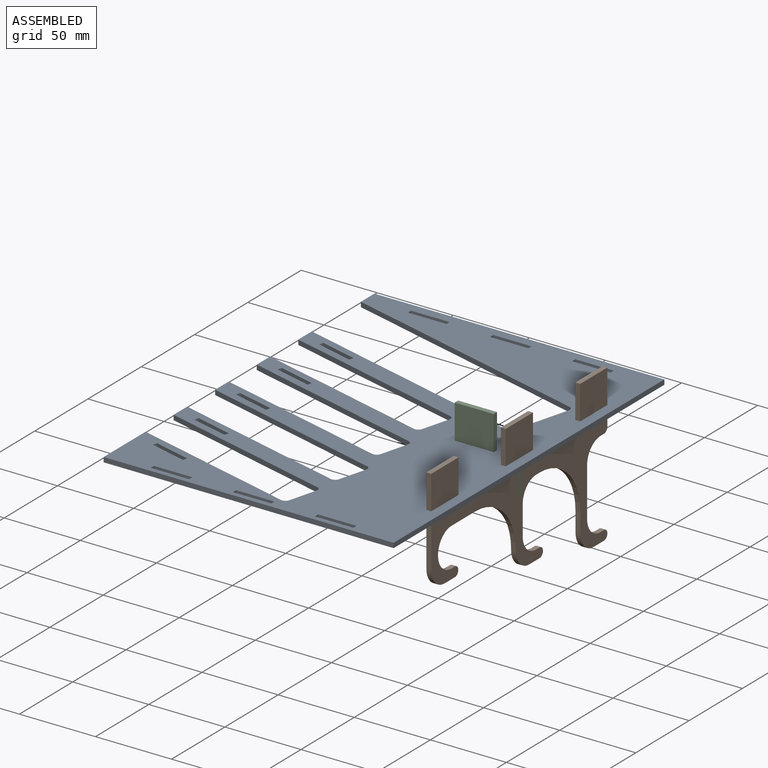
[diagram: assembled view]
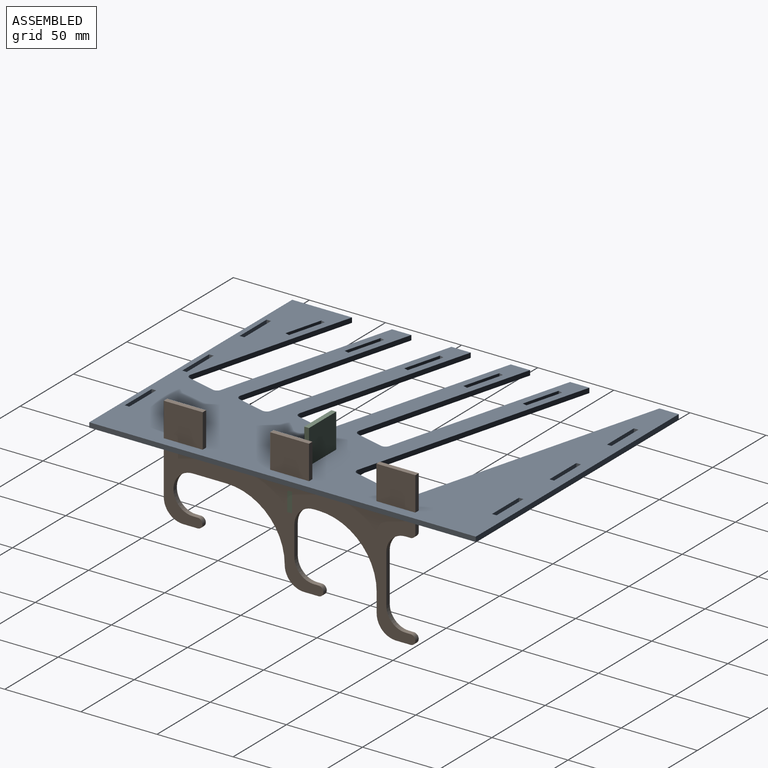
[diagram: assembled view, second angle]
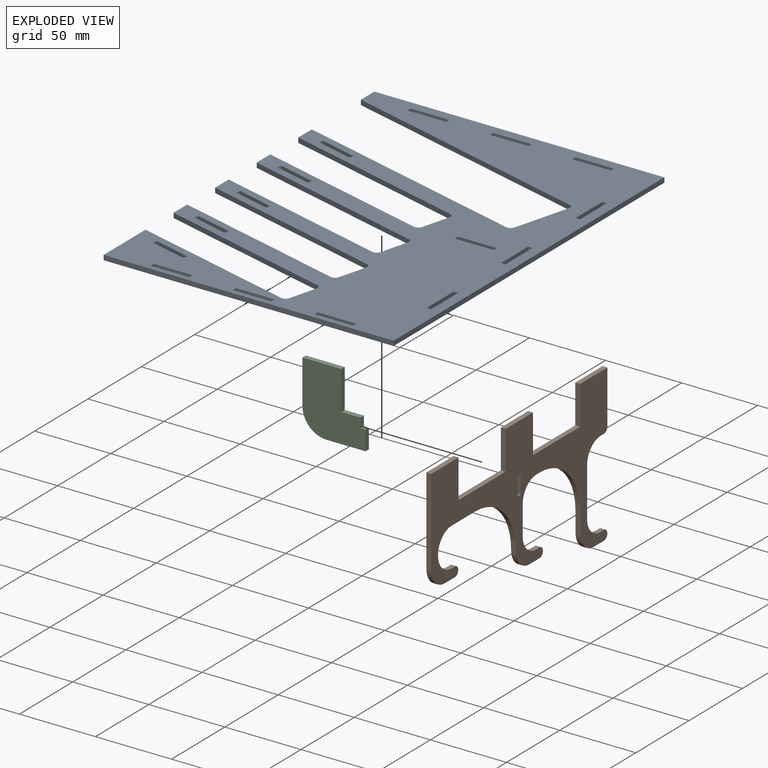
[diagram: exploded view]
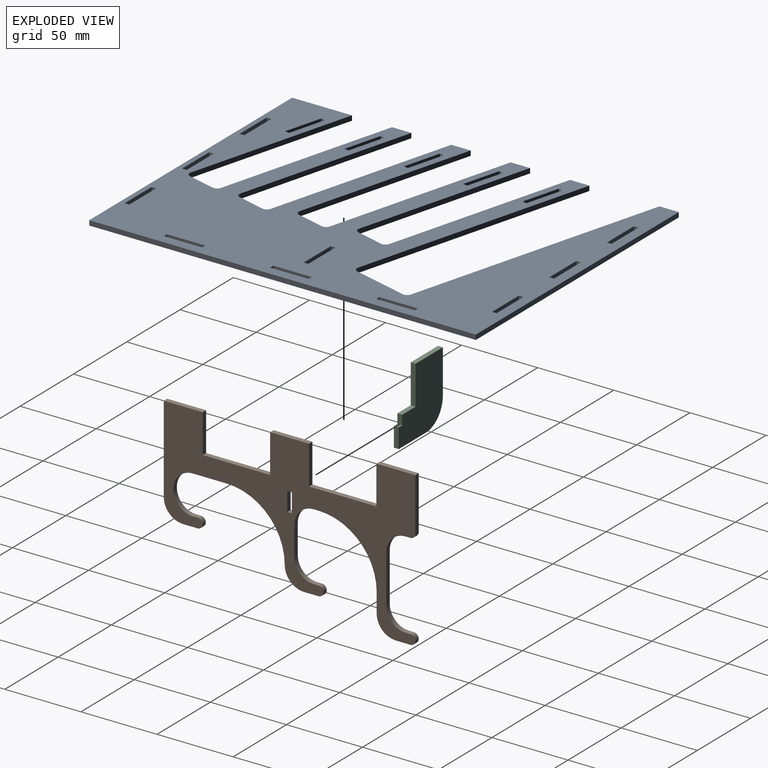
[diagram: exploded view, second angle]
ASSEMBLY  parts=3 mates=2
PART A: 96 faces, bbox 190.5x254x3.2 mm
  f0: plane 254x190.5mm, normal (0,0,1), area 26928.5mm2, adj f2,f3,f4,f5,f6,f7,f8,f9
  f1: plane 254x190.5mm, normal (0,0,-1), area 26928.5mm2, adj f2,f3,f4,f5,f6,f7,f8,f9
  f2: plane 12.7x3.18mm, normal (-1,0,0), area 40.3mm2, adj f0,f1,f3,f35
  f3: plane 116.1x31.11mm, normal (-0.26,-0.97,0), area 381.6mm2, adj f0,f1,f2,f4
  f4: cylinder r=3.17mm len=3.89mm, axis (0,0,-1), area 15.8mm2, adj f0,f1,f3,f5
  f5: plane 18.4x4.93mm, normal (-0.97,0.26,0), area 60.5mm2, adj f0,f1,f4,f6
  f6: cylinder r=3.17mm len=3.89mm, axis (0,0,-1), area 15.8mm2, adj f0,f1,f5,f7
  f7: plane 109.52x29.35mm, normal (0.26,0.97,0), area 360mm2, adj f0,f1,f6,f8
  f8: plane 39.3x3.18mm, normal (-1,0,0), area 124.8mm2, adj f0,f1,f7,f9
  f9: plane 190.5x3.18mm, normal (0,-1,0), area 604.8mm2, adj f0,f1,f8,f10
  f10: plane 254x3.18mm, normal (1,0,0), area 806.5mm2, adj f0,f1,f9,f11
  f11: plane 190.5x3.18mm, normal (0,1,0), area 604.8mm2, adj f0,f1,f10,f12
  f12: plane 12.7x3.18mm, normal (-1,0,0), area 40.3mm2, adj f0,f1,f11,f13
  f13: plane 168.67x45.2mm, normal (-0.26,-0.97,0), area 554.4mm2, adj f0,f1,f12,f14
  f14: cylinder r=3.17mm len=3.89mm, axis (0,0,-1), area 15.8mm2, adj f0,f1,f13,f15
  f15: plane 36.8x9.86mm, normal (-0.97,0.26,0), area 121mm2, adj f0,f1,f14,f16
  f16: cylinder r=3.17mm len=3.89mm, axis (0,0,-1), area 15.8mm2, adj f0,f1,f15,f17
  f17: plane 157.17x42.11mm, normal (0.26,0.97,0), area 516.6mm2, adj f0,f1,f16,f18
  f18: plane 12.7x3.18mm, normal (-1,0,0), area 40.3mm2, adj f0,f1,f17,f19
  f19: plane 122.67x32.87mm, normal (-0.26,-0.97,0), area 403.2mm2, adj f0,f1,f18,f20
  f20: cylinder r=3.17mm len=3.89mm, axis (0,0,-1), area 15.8mm2, adj f0,f1,f19,f21
  f21: plane 18.4x4.93mm, normal (-0.97,0.26,0), area 60.5mm2, adj f0,f1,f20,f22
  f22: cylinder r=3.17mm len=3.89mm, axis (0,0,-1), area 15.8mm2, adj f0,f1,f21,f23
  f23: plane 116.1x31.11mm, normal (0.26,0.97,0), area 381.6mm2, adj f0,f1,f22,f24
  f24: plane 12.7x3.18mm, normal (-1,0,0), area 40.3mm2, adj f0,f1,f23,f25
  f25: plane 122.67x32.87mm, normal (-0.26,-0.97,0), area 403.2mm2, adj f0,f1,f24,f26
  f26: cylinder r=3.17mm len=3.89mm, axis (0,0,-1), area 15.8mm2, adj f0,f1,f25,f27
  f27: plane 18.4x4.93mm, normal (-0.97,0.26,0), area 60.5mm2, adj f0,f1,f26,f28
  f28: cylinder r=3.17mm len=3.89mm, axis (0,0,-1), area 15.8mm2, adj f0,f1,f27,f29
  f29: plane 116.1x31.11mm, normal (0.26,0.97,0), area 381.6mm2, adj f0,f1,f28,f30
  f30: plane 12.7x3.18mm, normal (-1,0,0), area 40.3mm2, adj f0,f1,f29,f31
  f31: plane 122.67x32.87mm, normal (-0.26,-0.97,0), area 403.2mm2, adj f0,f1,f30,f32
  f32: cylinder r=3.17mm len=3.89mm, axis (0,0,-1), area 15.8mm2, adj f0,f1,f31,f33
  f33: plane 18.4x4.93mm, normal (-0.97,0.26,0), area 60.5mm2, adj f0,f1,f32,f34
  f34: cylinder r=3.17mm len=3.89mm, axis (0,0,-1), area 15.8mm2, adj f0,f1,f33,f35
  f35: plane 116.1x31.11mm, normal (0.26,0.97,0), area 381.6mm2, adj f0,f1,f2,f34
  f36: plane 3.18x3mm, normal (-1,0,0), area 9.5mm2, adj f0,f1,f37,f39
  f37: plane 25.22x3.18mm, normal (0,-1,0), area 80.1mm2, adj f0,f1,f36,f38
  f38: plane 3.18x3mm, normal (1,0,0), area 9.5mm2, adj f0,f1,f37,f39
  f39: plane 25.22x3.18mm, normal (0,1,0), area 80.1mm2, adj f0,f1,f36,f38
  f40: plane 3.18x2.9mm, normal (-0.97,0.26,0), area 9.5mm2, adj f0,f1,f41,f43
  f41: plane 24.36x6.53mm, normal (-0.26,-0.97,0), area 80.1mm2, adj f0,f1,f40,f42
  f42: plane 3.18x2.9mm, normal (0.97,-0.26,0), area 9.5mm2, adj f0,f1,f41,f43
  f43: plane 24.36x6.53mm, normal (0.26,0.97,0), area 80.1mm2, adj f0,f1,f40,f42
  f44: plane 3.18x3mm, normal (0,-1,0), area 9.5mm2, adj f0,f1,f45,f47
  f45: plane 25.22x3.18mm, normal (1,0,0), area 80.1mm2, adj f0,f1,f44,f46
  f46: plane 3.18x3mm, normal (0,1,0), area 9.5mm2, adj f0,f1,f45,f47
  f47: plane 25.22x3.18mm, normal (-1,0,0), area 80.1mm2, adj f0,f1,f44,f46
  f48: plane 24.36x6.53mm, normal (-0.26,-0.97,0), area 80.1mm2, adj f0,f1,f49,f51
  f49: plane 3.18x2.9mm, normal (0.97,-0.26,0), area 9.5mm2, adj f0,f1,f48,f50
  f50: plane 24.36x6.53mm, normal (0.26,0.97,0), area 80.1mm2, adj f0,f1,f49,f51
  f51: plane 3.18x2.9mm, normal (-0.97,0.26,0), area 9.5mm2, adj f0,f1,f48,f50
  f52: plane 3.18x2.9mm, normal (-0.97,0.26,0), area 9.5mm2, adj f0,f1,f53,f55
  f53: plane 24.36x6.53mm, normal (-0.26,-0.97,0), area 80.1mm2, adj f0,f1,f52,f54
  f54: plane 3.18x2.9mm, normal (0.97,-0.26,0), area 9.5mm2, adj f0,f1,f53,f55
  f55: plane 24.36x6.53mm, normal (0.26,0.97,0), area 80.1mm2, adj f0,f1,f52,f54
  f56: plane 3.18x2.9mm, normal (-0.97,0.26,0), area 9.5mm2, adj f0,f1,f57,f59
  f57: plane 24.36x6.53mm, normal (-0.26,-0.97,0), area 80.1mm2, adj f0,f1,f56,f58
  f58: plane 3.18x2.9mm, normal (0.97,-0.26,0), area 9.5mm2, adj f0,f1,f57,f59
  f59: plane 24.36x6.53mm, normal (0.26,0.97,0), area 80.1mm2, adj f0,f1,f56,f58
  f60: plane 3.18x3mm, normal (-1,0,0), area 9.5mm2, adj f0,f1,f61,f63
  f61: plane 25.22x3.18mm, normal (0,-1,0), area 80.1mm2, adj f0,f1,f60,f62
  f62: plane 3.18x3mm, normal (1,0,0), area 9.5mm2, adj f0,f1,f61,f63
  f63: plane 25.22x3.18mm, normal (0,1,0), area 80.1mm2, adj f0,f1,f60,f62
  f64: plane 3.18x3mm, normal (-1,0,0), area 9.5mm2, adj f0,f1,f65,f67
  f65: plane 25.22x3.18mm, normal (0,-1,0), area 80.1mm2, adj f0,f1,f64,f66
  f66: plane 3.18x3mm, normal (1,0,0), area 9.5mm2, adj f0,f1,f65,f67
  f67: plane 25.22x3.18mm, normal (0,1,0), area 80.1mm2, adj f0,f1,f64,f66
  f68: plane 24.36x6.53mm, normal (-0.26,-0.97,0), area 80.1mm2, adj f0,f1,f69,f71
  f69: plane 3.18x2.9mm, normal (0.97,-0.26,0), area 9.5mm2, adj f0,f1,f68,f70
  f70: plane 24.36x6.53mm, normal (0.26,0.97,0), area 80.1mm2, adj f0,f1,f69,f71
  f71: plane 3.18x2.9mm, normal (-0.97,0.26,0), area 9.5mm2, adj f0,f1,f68,f70
  f72: plane 25.22x3.18mm, normal (0,1,0), area 80.1mm2, adj f0,f1,f73,f75
  f73: plane 3.18x3mm, normal (-1,0,0), area 9.5mm2, adj f0,f1,f72,f74
  f74: plane 25.22x3.18mm, normal (0,-1,0), area 80.1mm2, adj f0,f1,f73,f75
  f75: plane 3.18x3mm, normal (1,0,0), area 9.5mm2, adj f0,f1,f72,f74
  f76: plane 25.22x3.18mm, normal (0,1,0), area 80.1mm2, adj f0,f1,f77,f79
  f77: plane 3.18x3mm, normal (-1,0,0), area 9.5mm2, adj f0,f1,f76,f78
  f78: plane 25.22x3.18mm, normal (0,-1,0), area 80.1mm2, adj f0,f1,f77,f79
  f79: plane 3.18x3mm, normal (1,0,0), area 9.5mm2, adj f0,f1,f76,f78
  f80: plane 3.18x3mm, normal (-1,0,0), area 9.5mm2, adj f0,f1,f81,f83
  f81: plane 25.22x3.18mm, normal (0,-1,0), area 80.1mm2, adj f0,f1,f80,f82
  f82: plane 3.18x3mm, normal (1,0,0), area 9.5mm2, adj f0,f1,f81,f83
  f83: plane 25.22x3.18mm, normal (0,1,0), area 80.1mm2, adj f0,f1,f80,f82
  f84: plane 25.22x3.18mm, normal (-1,0,0), area 80.1mm2, adj f0,f1,f85,f87
  f85: plane 3.18x3mm, normal (0,-1,0), area 9.5mm2, adj f0,f1,f84,f86
  f86: plane 25.22x3.18mm, normal (1,0,0), area 80.1mm2, adj f0,f1,f85,f87
  f87: plane 3.18x3mm, normal (0,1,0), area 9.5mm2, adj f0,f1,f84,f86
  f88: plane 3.18x3mm, normal (0,1,0), area 9.5mm2, adj f0,f1,f89,f91
  f89: plane 25.22x3.18mm, normal (-1,0,0), area 80.1mm2, adj f0,f1,f88,f90
  f90: plane 3.18x3mm, normal (0,-1,0), area 9.5mm2, adj f0,f1,f89,f91
  f91: plane 25.22x3.18mm, normal (1,0,0), area 80.1mm2, adj f0,f1,f88,f90
  f92: plane 3.18x3mm, normal (1,0,0), area 9.5mm2, adj f0,f1,f93,f94
  f93: plane 25.4x3.18mm, normal (0,-1,0), area 80.6mm2, adj f0,f1,f92,f95
  f94: plane 25.4x3.18mm, normal (0,1,0), area 80.6mm2, adj f0,f1,f92,f95
  f95: plane 3.18x3mm, normal (-1,0,0), area 9.5mm2, adj f0,f1,f93,f94
PART B: 43 faces, bbox 101.6x165.3x3.2 mm
  f0: plane 165.28x101.6mm, normal (0,0,1), area 6012.6mm2, adj f2,f3,f4,f5,f6,f7,f8,f9
  f1: plane 165.28x101.6mm, normal (0,0,-1), area 6012.6mm2, adj f2,f3,f4,f5,f6,f7,f8,f9
  f2: plane 25.4x3.18mm, normal (0,-1,0), area 80.6mm2, adj f0,f1,f3,f34
  f3: plane 44.27x3.18mm, normal (-1,0,0), area 140.6mm2, adj f0,f1,f2,f4
  f4: plane 25.4x3.18mm, normal (0,1,0), area 80.6mm2, adj f0,f1,f3,f5
  f5: plane 25.58x3.18mm, normal (-1,0,0), area 81.2mm2, adj f0,f1,f4,f6
  f6: plane 25.4x3.18mm, normal (0,-1,0), area 80.6mm2, adj f0,f1,f5,f7
  f7: plane 44.27x3.18mm, normal (-1,0,0), area 140.6mm2, adj f0,f1,f6,f8
  f8: plane 25.4x3.18mm, normal (0,1,0), area 80.6mm2, adj f0,f1,f7,f9
  f9: plane 25.58x3.18mm, normal (-1,0,0), area 81.2mm2, adj f0,f1,f8,f10
  f10: plane 57.15x3.18mm, normal (0,-1,0), area 181.5mm2, adj f0,f1,f9,f11
  f11: cylinder r=12.7mm len=12.7mm, axis (0,0,-1), area 63.3mm2, adj f0,f1,f10,f12
  f12: plane 9.53x3.18mm, normal (1,0,0), area 30.2mm2, adj f0,f1,f11,f42
  f13: plane 3.18x3.18mm, normal (-1,0,0), area 10.1mm2, adj f0,f1,f14,f42
  f14: cylinder r=12.7mm len=25.4mm, axis (0,0,-1), area 126.7mm2, adj f0,f1,f13,f15
  f15: plane 22.31x3.18mm, normal (1,0,0), area 70.8mm2, adj f0,f1,f14,f16
  f16: cylinder r=38.1mm len=38.1mm, axis (0,0,-1), area 190mm2, adj f0,f1,f15,f17
  f17: cylinder r=12.7mm len=12.7mm, axis (0,0,-1), area 63.3mm2, adj f0,f1,f16,f18
  f18: plane 9.53x3.18mm, normal (1,0,0), area 30.2mm2, adj f0,f1,f17,f39
  f19: plane 3.18x3.18mm, normal (-1,0,0), area 10.1mm2, adj f0,f1,f20,f39
  f20: cylinder r=12.7mm len=12.7mm, axis (0,0,-1), area 63.3mm2, adj f0,f1,f19,f21
  f21: plane 19.05x3.18mm, normal (0,1,0), area 60.5mm2, adj f0,f1,f20,f22
  f22: cylinder r=12.7mm len=12.7mm, axis (0,0,-1), area 63.3mm2, adj f0,f1,f21,f23
  f23: plane 3.26x3.18mm, normal (1,0,0), area 10.4mm2, adj f0,f1,f22,f24
  f24: cylinder r=38.1mm len=38.1mm, axis (0,0,-1), area 190mm2, adj f0,f1,f23,f25
  f25: plane 12.7x3.18mm, normal (0,-1,0), area 40.3mm2, adj f0,f1,f24,f26
  f26: cylinder r=12.7mm len=12.7mm, axis (0,0,-1), area 63.3mm2, adj f0,f1,f25,f27
  f27: plane 9.53x3.18mm, normal (1,0,0), area 30.2mm2, adj f0,f1,f26,f40
  f28: plane 3.18x3.18mm, normal (-1,0,0), area 10.1mm2, adj f0,f1,f29,f40
  f29: cylinder r=12.7mm len=12.7mm, axis (0,0,-1), area 63.3mm2, adj f0,f1,f28,f30
  f30: plane 31.75x3.18mm, normal (0,1,0), area 100.8mm2, adj f0,f1,f29,f31
  f31: cylinder r=12.7mm len=12.7mm, axis (0,0,-1), area 63.3mm2, adj f0,f1,f30,f32
  f32: plane 3.18x3.18mm, normal (1,0,0), area 10.1mm2, adj f0,f1,f31,f41
  f33: plane 34.93x3.18mm, normal (0,1,0), area 110.9mm2, adj f0,f1,f34,f41
  f34: plane 25.58x3.18mm, normal (-1,0,0), area 81.2mm2, adj f0,f1,f2,f33
  f35: plane 3.18x3mm, normal (-1,0,0), area 9.5mm2, adj f0,f1,f36,f38
  f36: plane 12.52x3.18mm, normal (0,-1,0), area 39.8mm2, adj f0,f1,f35,f37
  f37: plane 3.18x3mm, normal (1,0,0), area 9.5mm2, adj f0,f1,f36,f38
  f38: plane 12.52x3.18mm, normal (0,1,0), area 39.8mm2, adj f0,f1,f35,f37
  f39: cylinder r=3.17mm len=6.35mm, axis (0,0,1), area 31.7mm2, adj f0,f1,f18,f19
  f40: cylinder r=3.17mm len=6.35mm, axis (0,0,1), area 31.7mm2, adj f0,f1,f27,f28
  f41: cylinder r=3.17mm len=3.18mm, axis (0,0,1), area 15.8mm2, adj f0,f1,f32,f33
  f42: cylinder r=3.17mm len=6.35mm, axis (0,0,1), area 31.7mm2, adj f0,f1,f12,f13
PART C: 11 faces, bbox 44.6x41.5x3.2 mm
  f0: plane 28.75x3.18mm, normal (0,1,0), area 91.3mm2, adj f1,f8,f9,f10
  f1: plane 25.58x3.18mm, normal (-1,0,0), area 81.2mm2, adj f0,f2,f9,f10
  f2: plane 25.49x3.18mm, normal (0,-1,0), area 80.9mm2, adj f1,f3,f9,f10
  f3: plane 12.61x3.18mm, normal (-1,0,0), area 40mm2, adj f2,f4,f9,f10
  f4: plane 6.26x3.18mm, normal (0,-1,0), area 19.9mm2, adj f3,f5,f9,f10
  f5: plane 3.26x3.18mm, normal (-1,0,0), area 10.4mm2, adj f4,f6,f9,f10
  f6: plane 12.88x3.18mm, normal (0,-1,0), area 40.9mm2, adj f5,f7,f9,f10
  f7: plane 25.58x3.18mm, normal (1,0,0), area 81.2mm2, adj f6,f8,f9,f10
  f8: cylinder r=15.88mm len=15.88mm, axis (0,0,-1), area 79.2mm2, adj f0,f7,f9,f10
  f9: plane 44.63x41.45mm, normal (0,0,1), area 1370.8mm2, adj f0,f1,f2,f3,f4,f5,f6,f7
  f10: plane 44.63x41.45mm, normal (0,0,-1), area 1370.8mm2, adj f0,f1,f2,f3,f4,f5,f6,f7
PLACE A t=(3.17,-254,-3.18)mm
PLACE B rot(axis=(0,1,0),90deg) t=(184.06,-209.51,-3.18)mm
PLACE C rot(axis=(-0.58,0.58,0.58),120deg) t=(183.97,-128.37,124)mm
MATE fastened C.f6 <-> B.f0  axis (1,0,0) through (187.24,-128.37,-22.14)mm
MATE fastened B.f3 <-> A.f1  axis (0,0,1) through (187.24,-69.81,-3.18)mm
